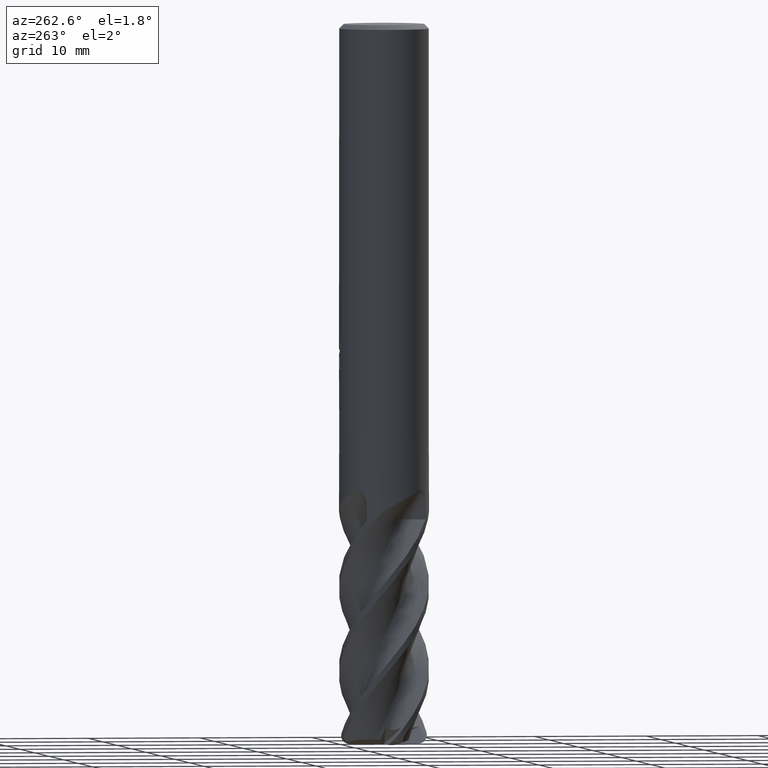
[diagram: clean part render]
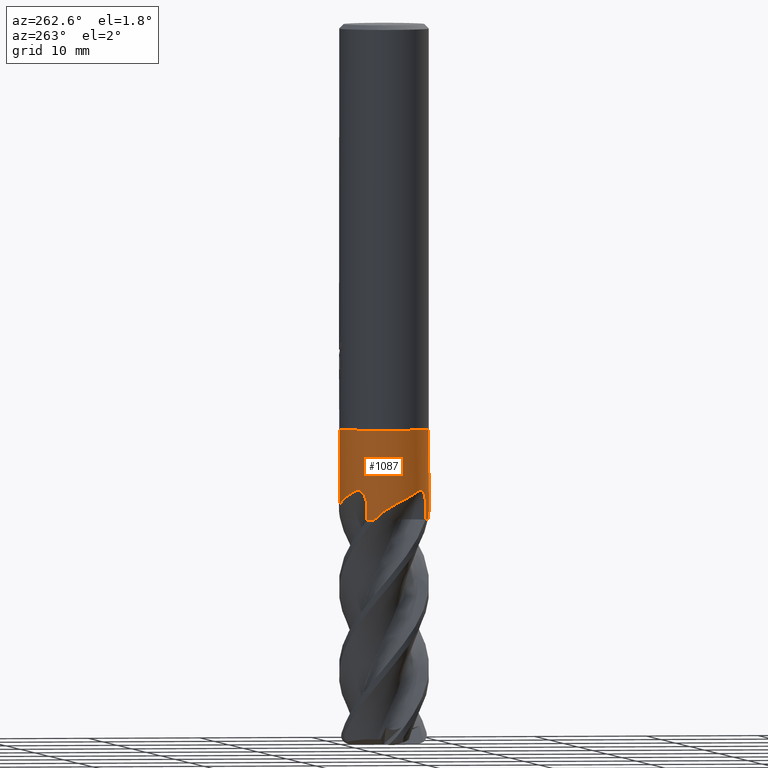
[diagram: same view with one face highlighted and labeled with its STEP entity id]
A machine part, auxiliary view. The second image highlights one B-rep face of the part: STEP entity #1087.
In plain terms, the highlighted cylindrical surface (partial cylindrical patch) has radius 4 mm, axis along (-0, -0, 1).
Its self-contained STEP definition (entity closure, byte-faithful):
#541=EDGE_CURVE('',#1513,#947,#1576,.T.);
#547=VERTEX_POINT('',#1583);
#619=VERTEX_POINT('',#1663);
#625=VERTEX_POINT('',#1669);
#689=VERTEX_POINT('',#1737);
#699=VERTEX_POINT('',#1749);
#701=EDGE_CURVE('',#1383,#1065,#1751,.T.);
#705=EDGE_CURVE('',#699,#1513,#1755,.T.);
#723=VERTEX_POINT('',#1776);
#755=EDGE_CURVE('',#723,#619,#1809,.T.);
#795=EDGE_CURVE('',#917,#1383,#1851,.T.);
#837=VERTEX_POINT('',#1895);
#861=EDGE_CURVE('',#1073,#699,#1920,.T.);
#893=EDGE_CURVE('',#837,#917,#1960,.T.);
#917=VERTEX_POINT('',#1986);
#947=VERTEX_POINT('',#2019);
#1051=EDGE_CURVE('',#947,#547,#2128,.T.);
#1065=VERTEX_POINT('',#2143);
#1073=VERTEX_POINT('',#2151);
#1075=VERTEX_POINT('',#2153);
#1087=ADVANCED_FACE('',(#2166),#2167,.T.);
#1091=EDGE_CURVE('',#625,#547,#2171,.T.);
#1193=EDGE_CURVE('',#689,#1065,#2282,.T.);
#1291=EDGE_CURVE('',#1075,#1073,#2396,.T.);
#1319=EDGE_CURVE('',#619,#1075,#2428,.T.);
#1383=VERTEX_POINT('',#2498);
#1399=EDGE_CURVE('',#625,#837,#2514,.T.);
#1451=EDGE_CURVE('',#689,#723,#2571,.T.);
#1513=VERTEX_POINT('',#2638);
#1576=B_SPLINE_CURVE_WITH_KNOTS('',3,(#2698,#2699,#2700,#2701,#2702,#2703,#2704,#2705,#2706,#2707,#2708,#2709,#2710,#2711),.UNSPECIFIED.,.F.,.F.,(4,2,2,2,2,2,4),(0.0,0.294416909943048,0.552134345680377,0.833290743636005,1.22026508198366,1.627394955767,2.05328934151344),.UNSPECIFIED.);
#1583=CARTESIAN_POINT('',(-3.47739601261392,1.97669344460814,-44.000000000002));
#1663=CARTESIAN_POINT('',(1.45488294775022E-011,-3.99995,-42.8604694668192));
#1669=CARTESIAN_POINT('',(-3.74571334313282,1.40329311035748,-44.0));
#1737=CARTESIAN_POINT('',(-1.40329311035743,-3.74571334313284,-44.0));
#1749=CARTESIAN_POINT('',(-1.4552382191181E-011,3.99995000000001,-42.8604694668191));
#1751=B_SPLINE_CURVE_WITH_KNOTS('',3,(#3629,#3630,#3631,#3632),.UNSPECIFIED.,.F.,.F.,(4,4),(0.0,1.31671427473163),.UNSPECIFIED.);
#1755=B_SPLINE_CURVE_WITH_KNOTS('',3,(#3637,#3638,#3639,#3640,#3641,#3642,#3643,#3644,#3645,#3646),.UNSPECIFIED.,.F.,.F.,(4,2,2,2,4),(0.0,1.20333093794305,2.60295448034248,3.89701604006406,5.05341984657578),.UNSPECIFIED.);
#1776=CARTESIAN_POINT('',(-1.28225657007316,-3.78885445629734,-43.8882012788395));
#1809=B_SPLINE_CURVE_WITH_KNOTS('',3,(#3886,#3887,#3888,#3889,#3890,#3891,#3892,#3893,#3894,#3895),.UNSPECIFIED.,.F.,.F.,(4,2,2,2,4),(0.0,1.20333093794325,2.60295448034313,3.89701604006513,5.05341984657705),.UNSPECIFIED.);
#1851=B_SPLINE_CURVE_WITH_KNOTS('',3,(#4155,#4156,#4157,#4158,#4159,#4160,#4161,#4162,#4163,#4164,#4165,#4166,#4167,#4168),.UNSPECIFIED.,.F.,.F.,(4,2,2,2,2,2,4),(0.0,0.294416909943049,0.552134345680378,0.833290743636008,1.22026508198368,1.62739495576706,2.05328934151357),.UNSPECIFIED.);
#1895=CARTESIAN_POINT('',(-3.78885445629735,1.28225657007313,-43.8882012788395));
#1920=LINE('',#4438,#4439);
#1960=B_SPLINE_CURVE_WITH_KNOTS('',3,(#4740,#4741,#4742,#4743,#4744,#4745,#4746,#4747,#4748,#4749),.UNSPECIFIED.,.F.,.F.,(4,2,2,2,4),(0.0,1.20333093794306,2.60295448034249,3.89701604006405,5.05341984657575),.UNSPECIFIED.);
#1986=CARTESIAN_POINT('',(-2.93428403308071,-2.71837768084341,-41.4111647959292));
#2019=CARTESIAN_POINT('',(-3.46353965098952,2.000873081563,-42.6835174532093));
#2128=B_SPLINE_CURVE_WITH_KNOTS('',3,(#6208,#6209,#6210,#6211),.UNSPECIFIED.,.F.,.F.,(4,4),(0.0,1.31671427473163),.UNSPECIFIED.);
#2143=CARTESIAN_POINT('',(-1.97669344460817,-3.4773960126139,-44.0));
#2151=CARTESIAN_POINT('',(0.0,3.99995,-36.0));
#2153=CARTESIAN_POINT('',(4.89836418497181E-016,-3.99995,-36.0));
#2166=FACE_OUTER_BOUND('',#6660,.T.);
#2167=CYLINDRICAL_SURFACE('',#6661,3.99995);
#2171=CIRCLE('',#6676,3.99995);
#2282=CIRCLE('',#7763,3.99995);
#2396=CIRCLE('',#8464,3.99995);
#2428=LINE('',#8595,#8596);
#2498=CARTESIAN_POINT('',(-2.000873081563,-3.46353965098952,-42.6835174532093));
#2514=B_SPLINE_CURVE_WITH_KNOTS('',3,(#9747,#9748,#9749,#9750),.UNSPECIFIED.,.F.,.F.,(4,4),(0.0,0.165509292013336),.UNSPECIFIED.);
#2571=B_SPLINE_CURVE_WITH_KNOTS('',3,(#10247,#10248,#10249,#10250),.UNSPECIFIED.,.F.,.F.,(4,4),(0.0,0.165509292012925),.UNSPECIFIED.);
#2638=CARTESIAN_POINT('',(-2.71837768084341,2.93428403308071,-41.4111647959292));
#2698=CARTESIAN_POINT('',(-2.71837768084853,2.93428403307597,-41.4111647961879));
#2699=CARTESIAN_POINT('',(-2.78558649361919,2.87202048444446,-41.3759869135525));
#2700=CARTESIAN_POINT('',(-2.85369476027261,2.80457277271417,-41.3564585176481));
#2701=CARTESIAN_POINT('',(-2.97925626850515,2.67039129110906,-41.3601884652629));
#2702=CARTESIAN_POINT('',(-3.03388215340515,2.6079477714321,-41.3783579371151));
#2703=CARTESIAN_POINT('',(-3.13899644086864,2.48066907629962,-41.4485321689122));
#2704=CARTESIAN_POINT('',(-3.18622288999574,2.41914898611571,-41.5017952766937));
#2705=CARTESIAN_POINT('',(-3.28248202483889,2.28775256720401,-41.6535635454716));
#2706=CARTESIAN_POINT('',(-3.32542398427059,2.22370540273541,-41.7611678847767));
#2707=CARTESIAN_POINT('',(-3.39331659361634,2.11875186501169,-41.9954457194821));
#2708=CARTESIAN_POINT('',(-3.41811699035148,2.07777739350233,-42.1258595487602));
#2709=CARTESIAN_POINT('',(-3.45261288543882,2.01996262795655,-42.3969989933109));
#2710=CARTESIAN_POINT('',(-3.46188667210355,2.00373441143258,-42.5404699040746));
#2711=CARTESIAN_POINT('',(-3.46353965093949,2.00087308164961,-42.6835174532102));
#3629=CARTESIAN_POINT('',(-2.00087308156301,-3.46353965098952,-42.6835174532093));
#3630=CARTESIAN_POINT('',(-1.99209616569108,-3.46861004038214,-43.1223051509724));
#3631=CARTESIAN_POINT('',(-1.98402024543104,-3.4732311607811,-43.5611743371432));
#3632=CARTESIAN_POINT('',(-1.97669344460814,-3.47739601261392,-44.000000000002));
#3637=CARTESIAN_POINT('',(1.28225656933327,3.78885445654774,-43.8882012775876));
#3638=CARTESIAN_POINT('',(1.01888837536584,3.87798577598509,-43.5990952672488));
#3639=CARTESIAN_POINT('',(0.728668380415306,3.94660001293898,-43.3489085152097));
#3640=CARTESIAN_POINT('',(0.0246656117343003,4.01792981382288,-42.8567091410093));
#3641=CARTESIAN_POINT('',(-0.377006401818989,4.0037762182838,-42.638713409987));
#3642=CARTESIAN_POINT('',(-1.16140199871739,3.84687231062102,-42.2445585061473));
#3643=CARTESIAN_POINT('',(-1.5290875003129,3.71682192371265,-42.0733245972863));
#3644=CARTESIAN_POINT('',(-2.18395723660402,3.36932182532883,-41.7395711306478));
#3645=CARTESIAN_POINT('',(-2.46700745064692,3.16715829327194,-41.5827775306659));
#3646=CARTESIAN_POINT('',(-2.71837768084339,2.93428403308074,-41.4111647959292));
#3886=CARTESIAN_POINT('',(-1.28225656933329,-3.78885445654774,-43.8882012775876));
#3887=CARTESIAN_POINT('',(-1.01888837536582,-3.8779857759851,-43.5990952672488));
#3888=CARTESIAN_POINT('',(-0.728668380415314,-3.94660001293897,-43.3489085152097));
#3889=CARTESIAN_POINT('',(-0.0246656117343324,-4.01792981382288,-42.8567091410093));
#3890=CARTESIAN_POINT('',(0.377006401818964,-4.0037762182838,-42.638713409987));
#3891=CARTESIAN_POINT('',(1.1614019987173,-3.84687231062104,-42.2445585061474));
#3892=CARTESIAN_POINT('',(1.52908750031281,-3.7168219237127,-42.0733245972863));
#3893=CARTESIAN_POINT('',(2.18395723660401,-3.36932182532884,-41.7395711306478));
#3894=CARTESIAN_POINT('',(2.46700745064691,-3.16715829327195,-41.5827775306659));
#3895=CARTESIAN_POINT('',(2.71837768084338,-2.93428403308074,-41.4111647959292));
#4155=CARTESIAN_POINT('',(-2.93428403307597,-2.71837768084853,-41.4111647961879));
#4156=CARTESIAN_POINT('',(-2.87202048444446,-2.78558649361919,-41.3759869135525));
#4157=CARTESIAN_POINT('',(-2.80457277271417,-2.85369476027261,-41.3564585176481));
#4158=CARTESIAN_POINT('',(-2.67039129110906,-2.97925626850515,-41.3601884652629));
#4159=CARTESIAN_POINT('',(-2.60794777143211,-3.03388215340515,-41.3783579371151));
#4160=CARTESIAN_POINT('',(-2.48066907629962,-3.13899644086864,-41.4485321689122));
#4161=CARTESIAN_POINT('',(-2.41914898611571,-3.18622288999574,-41.5017952766937));
#4162=CARTESIAN_POINT('',(-2.28775256720401,-3.28248202483889,-41.6535635454716));
#4163=CARTESIAN_POINT('',(-2.22370540273541,-3.32542398427059,-41.7611678847767));
#4164=CARTESIAN_POINT('',(-2.11875186501169,-3.39331659361635,-41.9954457194821));
#4165=CARTESIAN_POINT('',(-2.07777739350233,-3.41811699035148,-42.1258595487602));
#4166=CARTESIAN_POINT('',(-2.01996262795655,-3.45261288543882,-42.3969989933109));
#4167=CARTESIAN_POINT('',(-2.00373441143258,-3.46188667210355,-42.5404699040745));
#4168=CARTESIAN_POINT('',(-2.00087308164961,-3.46353965093949,-42.6835174532102));
#4438=CARTESIAN_POINT('',(-4.89836418497183E-016,3.99995,-40.0));
#4439=VECTOR('',#11471,1.0);
#4740=CARTESIAN_POINT('',(-3.78885445654774,1.28225656933327,-43.8882012775876));
#4741=CARTESIAN_POINT('',(-3.87798577598509,1.01888837536583,-43.5990952672488));
#4742=CARTESIAN_POINT('',(-3.94660001293898,0.728668380415305,-43.3489085152097));
#4743=CARTESIAN_POINT('',(-4.01792981382288,0.024665611734301,-42.8567091410093));
#4744=CARTESIAN_POINT('',(-4.00377621828381,-0.377006401818986,-42.638713409987));
#4745=CARTESIAN_POINT('',(-3.84687231062102,-1.16140199871738,-42.2445585061473));
#4746=CARTESIAN_POINT('',(-3.71682192371265,-1.52908750031289,-42.0733245972862));
#4747=CARTESIAN_POINT('',(-3.36932182532883,-2.18395723660403,-41.7395711306478));
#4748=CARTESIAN_POINT('',(-3.16715829327194,-2.46700745064692,-41.5827775306659));
#4749=CARTESIAN_POINT('',(-2.93428403308074,-2.71837768084339,-41.4111647959292));
#6208=CARTESIAN_POINT('',(-3.46353965098952,2.00087308156301,-42.6835174532093));
#6209=CARTESIAN_POINT('',(-3.46861004038214,1.99209616569108,-43.1223051509724));
#6210=CARTESIAN_POINT('',(-3.4732311607811,1.98402024543104,-43.5611743371432));
#6211=CARTESIAN_POINT('',(-3.47739601261392,1.97669344460814,-44.000000000002));
#6660=EDGE_LOOP('',(#11721,#11722,#11723,#11724,#11725,#11726,#11727,#11728,#11729,#11730,#11731,#11732,#11733,#11734));
#6661=AXIS2_PLACEMENT_3D('',#11735,#11736,#11737);
#6676=AXIS2_PLACEMENT_3D('',#11738,#11739,#11740);
#7763=AXIS2_PLACEMENT_3D('',#11879,#11880,#11881);
#8464=AXIS2_PLACEMENT_3D('',#12044,#12045,#12046);
#8595=CARTESIAN_POINT('',(4.89836418497181E-016,-3.99995,-40.0));
#8596=VECTOR('',#12101,1.0);
#9747=CARTESIAN_POINT('',(-3.7457133431321,1.40329311035939,-44.000000000002));
#9748=CARTESIAN_POINT('',(-3.75955718751559,1.36634069304566,-43.9614439409754));
#9749=CARTESIAN_POINT('',(-3.77467202160045,1.32416330087622,-43.920888150721));
#9750=CARTESIAN_POINT('',(-3.78885445629731,1.28225657007328,-43.8882012788397));
#10247=CARTESIAN_POINT('',(-1.40329311035937,-3.74571334313211,-44.000000000002));
#10248=CARTESIAN_POINT('',(-1.36634069304574,-3.75955718751556,-43.9614439409755));
#10249=CARTESIAN_POINT('',(-1.32416330087625,-3.77467202160044,-43.920888150721));
#10250=CARTESIAN_POINT('',(-1.28225657007332,-3.7888544562973,-43.8882012788398));
#11471=DIRECTION('',(0.0,0.0,-1.0));
#11721=ORIENTED_EDGE('',*,*,#861,.T.);
#11722=ORIENTED_EDGE('',*,*,#705,.T.);
#11723=ORIENTED_EDGE('',*,*,#541,.T.);
#11724=ORIENTED_EDGE('',*,*,#1051,.T.);
#11725=ORIENTED_EDGE('',*,*,#1091,.F.);
#11726=ORIENTED_EDGE('',*,*,#1399,.T.);
#11727=ORIENTED_EDGE('',*,*,#893,.T.);
#11728=ORIENTED_EDGE('',*,*,#795,.T.);
#11729=ORIENTED_EDGE('',*,*,#701,.T.);
#11730=ORIENTED_EDGE('',*,*,#1193,.F.);
#11731=ORIENTED_EDGE('',*,*,#1451,.T.);
#11732=ORIENTED_EDGE('',*,*,#755,.T.);
#11733=ORIENTED_EDGE('',*,*,#1319,.T.);
#11734=ORIENTED_EDGE('',*,*,#1291,.T.);
#11735=CARTESIAN_POINT('',(0.0,0.0,-40.0));
#11736=DIRECTION('',(-0.0,-0.0,1.0));
#11737=DIRECTION('',(0.0,1.0,0.0));
#11738=CARTESIAN_POINT('',(0.0,0.0,-44.0));
#11739=DIRECTION('',(0.0,0.0,-1.0));
#11740=DIRECTION('',(0.0,1.0,0.0));
#11879=CARTESIAN_POINT('',(0.0,0.0,-44.0));
#11880=DIRECTION('',(0.0,0.0,-1.0));
#11881=DIRECTION('',(0.0,1.0,0.0));
#12044=CARTESIAN_POINT('',(0.0,0.0,-36.0));
#12045=DIRECTION('',(0.0,0.0,-1.0));
#12046=DIRECTION('',(0.0,1.0,0.0));
#12101=DIRECTION('',(-0.0,-0.0,1.0));